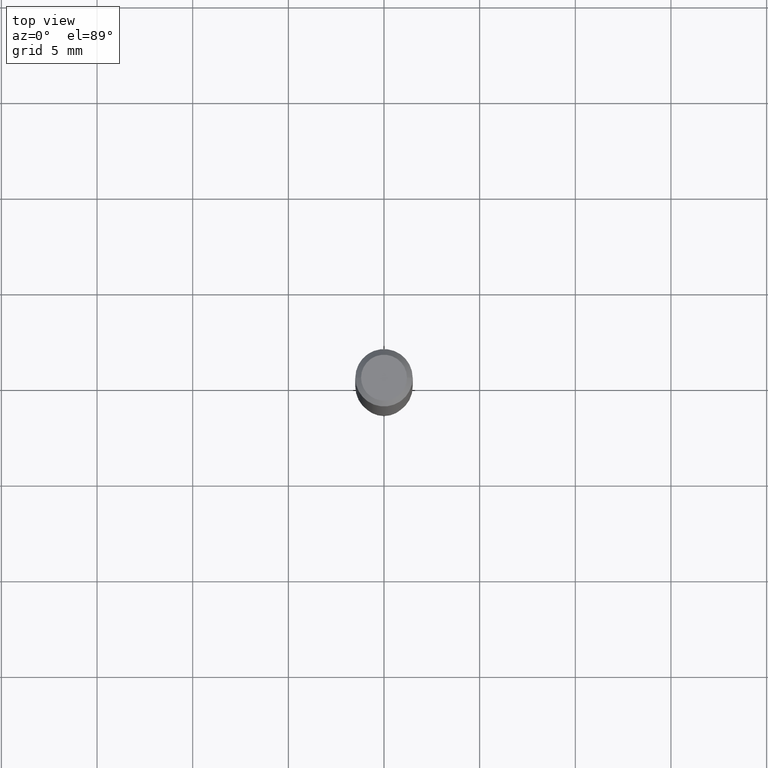
[diagram: clean part render]
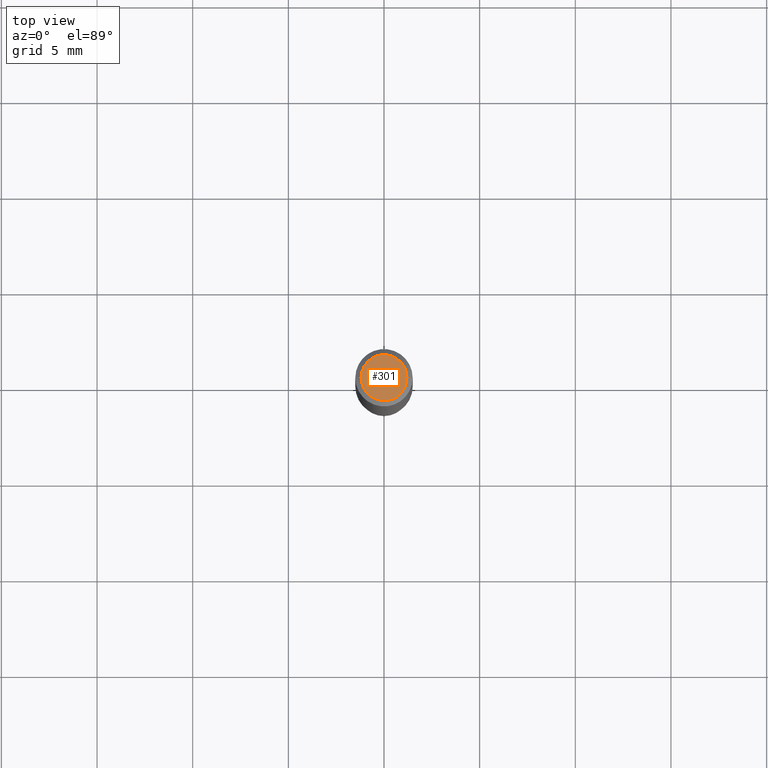
[diagram: same view with one face highlighted and labeled with its STEP entity id]
A machine part, top view. The second image highlights one B-rep face of the part: STEP entity #301.
In plain terms, the highlighted planar face has unit normal (0, -0, -1).
Its self-contained STEP definition (entity closure, byte-faithful):
#14 = AXIS2_PLACEMENT_3D ( 'NONE', #197, #355, #160 ) ;
#38 = EDGE_CURVE ( 'NONE', #359, #228, #258, .T. ) ;
#64 = AXIS2_PLACEMENT_3D ( 'NONE', #131, #440, #436 ) ;
#66 = ORIENTED_EDGE ( 'NONE', *, *, #38, .T. ) ;
#95 = AXIS2_PLACEMENT_3D ( 'NONE', #299, #265, #448 ) ;
#131 = CARTESIAN_POINT ( 'NONE',  ( 8.265746106709734507E-48, -1.180129479067563789E-33, -3.380025165646692144E-19 ) ) ;
#145 = PLANE ( 'NONE',  #95 ) ;
#148 = EDGE_CURVE ( 'NONE', #228, #359, #350, .T. ) ;
#160 = DIRECTION ( 'NONE',  ( 1.000000000000000000, -6.982962677686266711E-15, 4.876185090822587894E-29 ) ) ;
#197 = CARTESIAN_POINT ( 'NONE',  ( 8.265746106709734507E-48, -1.180129479067563789E-33, -3.380025165646692144E-19 ) ) ;
#215 = CARTESIAN_POINT ( 'NONE',  ( -0.04724000000000000421, 3.504923541997677355E-16, -3.380025165670481712E-19 ) ) ;
#228 = VERTEX_POINT ( 'NONE', #215 ) ;
#258 = CIRCLE ( 'NONE', #14, 0.04724000000000000421 ) ;
#265 = DIRECTION ( 'NONE',  ( 2.438088387897960049E-29, -3.491481338843145188E-15, -1.000000000000000000 ) ) ;
#299 = CARTESIAN_POINT ( 'NONE',  ( 4.132873053354867254E-48, -5.900647395337818946E-34, -1.690012582823346072E-19 ) ) ;
#301 = ADVANCED_FACE ( 'NONE', ( #410 ), #145, .F. ) ;
#350 = CIRCLE ( 'NONE', #64, 0.04724000000000000421 ) ;
#355 = DIRECTION ( 'NONE',  ( -2.445468806185136597E-29, 3.491481338843145583E-15, 1.000000000000000000 ) ) ;
#359 = VERTEX_POINT ( 'NONE', #467 ) ;
#410 = FACE_OUTER_BOUND ( 'NONE', #468, .T. ) ;
#436 = DIRECTION ( 'NONE',  ( 1.000000000000000000, -6.982962677686266711E-15, 4.876185090822587894E-29 ) ) ;
#438 = ORIENTED_EDGE ( 'NONE', *, *, #148, .T. ) ;
#440 = DIRECTION ( 'NONE',  ( -2.445468806185136597E-29, 3.491481338843145583E-15, 1.000000000000000000 ) ) ;
#448 = DIRECTION ( 'NONE',  ( -1.000000000000000000, 6.982962677686265922E-15, -4.876176775795935793E-29 ) ) ;
#467 = CARTESIAN_POINT ( 'NONE',  ( 0.04724000000000000421, -3.852183633974369345E-16, -3.380025165621689721E-19 ) ) ;
#468 = EDGE_LOOP ( 'NONE', ( #438, #66 ) ) ;